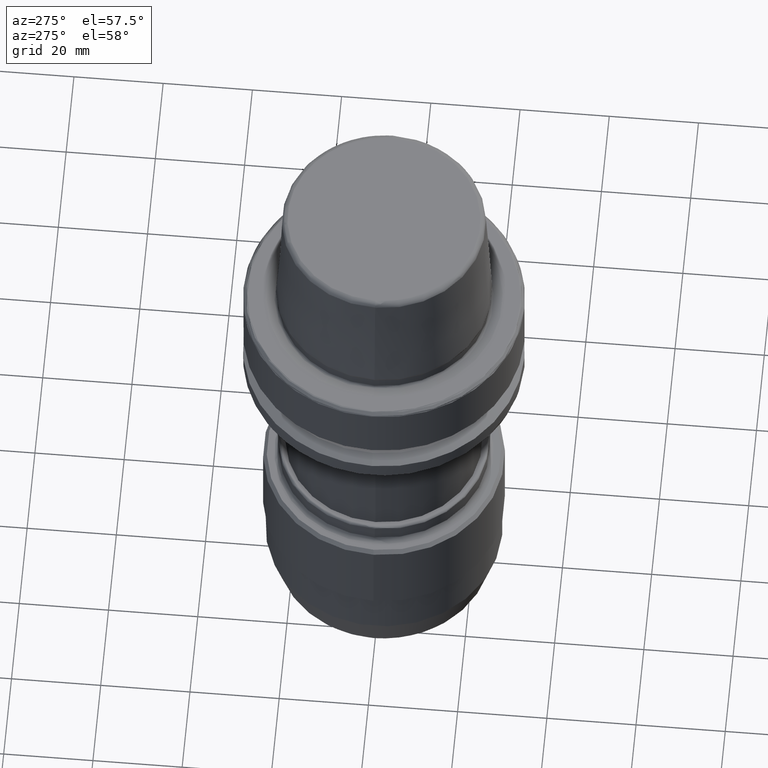
[diagram: clean part render]
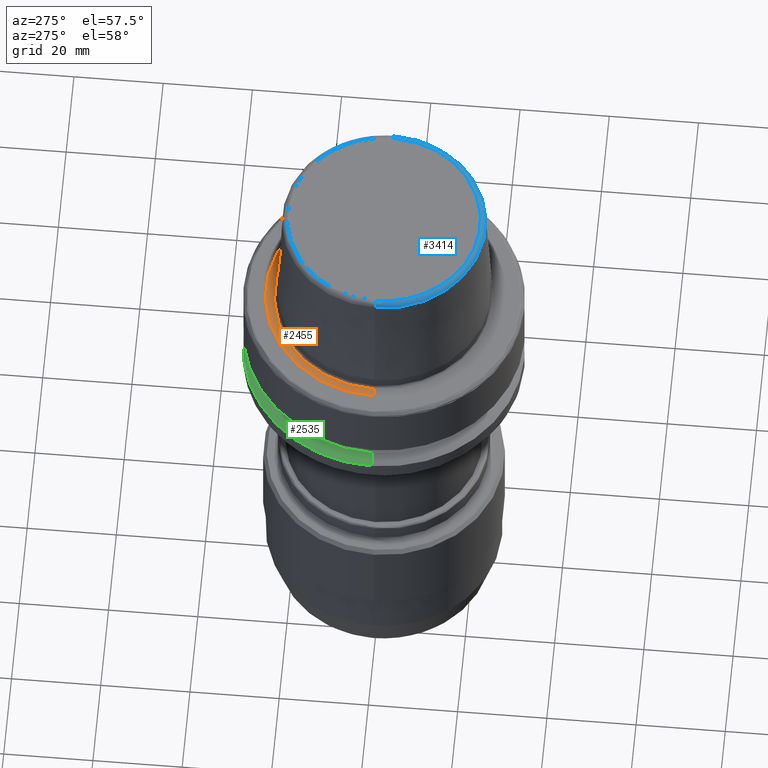
[diagram: same view with three faces highlighted in distinct colors, each labeled with its STEP entity id]
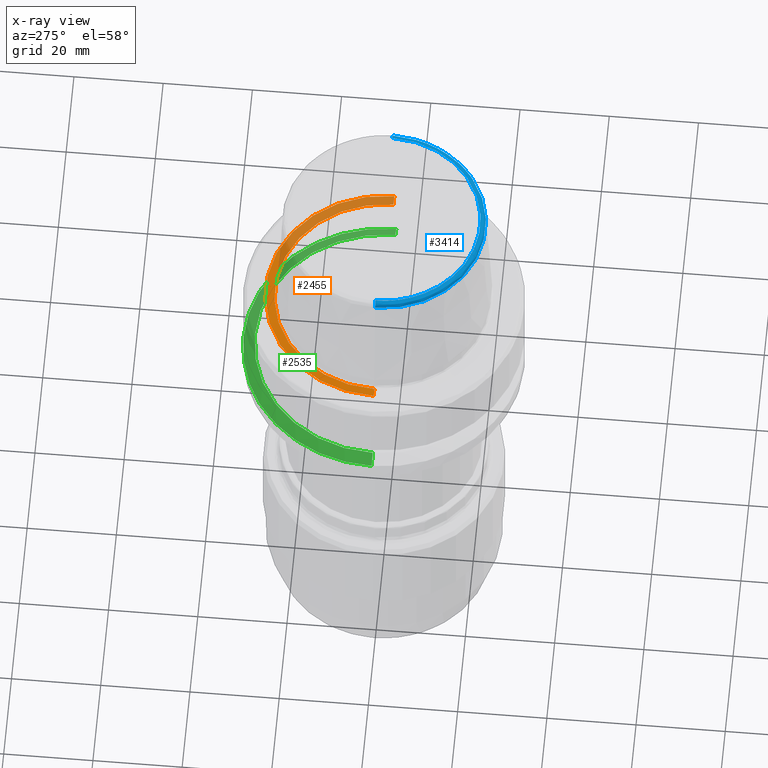
[diagram: x-ray of the same camera — body ghosted, the three highlighted faces saturated]
A machine part, auxiliary view with three faces highlighted in distinct colors.
The next image is the same camera in x-ray (body ghosted, the three faces saturated) — at least one of them is partly hidden behind the body in this view.
Their STEP definitions:

[orange] entity #2455 — the highlighted conical surface has half-angle 80 deg.
#88 = DIRECTION ( 'NONE',  ( 1.000000000000000000, 0.0000000000000000000, 0.0000000000000000000 ) ) ;
#109 = VECTOR ( 'NONE', #910, 1000.000000000000200 ) ;
#584 = DIRECTION ( 'NONE',  ( -0.0000000000000000000, -0.0000000000000000000, -1.000000000000000000 ) ) ;
#585 = CARTESIAN_POINT ( 'NONE',  ( 0.0000000000000000000, 0.0000000000000000000, -0.3611486740000000600 ) ) ;
#610 = EDGE_CURVE ( 'NONE', #2895, #1164, #1522, .T. ) ;
#611 = ORIENTED_EDGE ( 'NONE', *, *, #1173, .T. ) ;
#622 = CARTESIAN_POINT ( 'NONE',  ( -26.52499999999999900, 3.248375634738354300E-015, -2.168404344971008900E-016 ) ) ;
#648 = VERTEX_POINT ( 'NONE', #622 ) ;
#704 = CARTESIAN_POINT ( 'NONE',  ( -24.47682408902667500, -7.530420809730855500E-009, -0.3611486741505421900 ) ) ;
#723 = CIRCLE ( 'NONE', #2200, 24.47682408900000100 ) ;
#855 = FACE_OUTER_BOUND ( 'NONE', #2799, .T. ) ;
#868 = DIRECTION ( 'NONE',  ( 1.000000000000000000, 0.0000000000000000000, 0.0000000000000000000 ) ) ;
#910 = DIRECTION ( 'NONE',  ( 0.9848077530406941200, 0.0000000000000000000, 0.1736481775053776400 ) ) ;
#1164 = VERTEX_POINT ( 'NONE', #3451 ) ;
#1169 = VECTOR ( 'NONE', #2780, 1000.000000000000200 ) ;
#1173 = EDGE_CURVE ( 'NONE', #1624, #2895, #723, .T. ) ;
#1522 = LINE ( 'NONE', #3568, #109 ) ;
#1553 = ORIENTED_EDGE ( 'NONE', *, *, #3344, .F. ) ;
#1624 = VERTEX_POINT ( 'NONE', #704 ) ;
#1626 = CARTESIAN_POINT ( 'NONE',  ( -24.47682408900000400, 2.997546427388668300E-015, -0.3611486740000000600 ) ) ;
#1781 = DIRECTION ( 'NONE',  ( 0.0000000000000000000, -0.0000000000000000000, 1.000000000000000000 ) ) ;
#1893 = CARTESIAN_POINT ( 'NONE',  ( 24.47682408877312100, 0.0000000000000000000, -0.3611486741952509800 ) ) ;
#1894 = AXIS2_PLACEMENT_3D ( 'NONE', #3524, #1781, #88 ) ;
#1916 = LINE ( 'NONE', #1626, #1169 ) ;
#2200 = AXIS2_PLACEMENT_3D ( 'NONE', #2282, #584, #2562 ) ;
#2282 = CARTESIAN_POINT ( 'NONE',  ( 0.0000000000000000000, 0.0000000000000000000, -0.3611486739999447700 ) ) ;
#2294 = AXIS2_PLACEMENT_3D ( 'NONE', #585, #2863, #868 ) ;
#2353 = CIRCLE ( 'NONE', #1894, 26.52499999999999900 ) ;
#2455 = ADVANCED_FACE ( 'NONE', ( #855 ), #3555, .F. ) ;
#2562 = DIRECTION ( 'NONE',  ( 1.000000000000000000, 8.881784197001252300E-016, -2.259047603386186600E-015 ) ) ;
#2780 = DIRECTION ( 'NONE',  ( -0.9848077530406941200, 1.206041662536783300E-016, 0.1736481775053776400 ) ) ;
#2799 = EDGE_LOOP ( 'NONE', ( #1553, #611, #3702, #3083 ) ) ;
#2863 = DIRECTION ( 'NONE',  ( 0.0000000000000000000, -0.0000000000000000000, 1.000000000000000000 ) ) ;
#2895 = VERTEX_POINT ( 'NONE', #1893 ) ;
#3083 = ORIENTED_EDGE ( 'NONE', *, *, #3117, .T. ) ;
#3117 = EDGE_CURVE ( 'NONE', #1164, #648, #2353, .T. ) ;
#3344 = EDGE_CURVE ( 'NONE', #1624, #648, #1916, .T. ) ;
#3451 = CARTESIAN_POINT ( 'NONE',  ( 26.52499999999999900, 0.0000000000000000000, -2.168404344971008900E-016 ) ) ;
#3524 = CARTESIAN_POINT ( 'NONE',  ( 0.0000000000000000000, 0.0000000000000000000, -2.168404344971008900E-016 ) ) ;
#3555 = CONICAL_SURFACE ( 'NONE', #2294, 24.47682408900000400, 1.396263401759508600 ) ;
#3568 = CARTESIAN_POINT ( 'NONE',  ( 24.47682408900000400, 0.0000000000000000000, -0.3611486740000000600 ) ) ;
#3702 = ORIENTED_EDGE ( 'NONE', *, *, #610, .T. ) ;

[blue] entity #3414 — the highlighted face is a freeform B-spline surface patch.
#14 = CARTESIAN_POINT ( 'NONE',  ( 21.46128262699999900, 0.0000000000000000000, 31.89400499800000700 ) ) ;
#17 = CARTESIAN_POINT ( 'NONE',  ( 22.77957961885135400, -7.008254819992292000E-009, 30.76004333299252700 ) ) ;
#143 = FACE_OUTER_BOUND ( 'NONE', #3543, .T. ) ;
#178 = VERTEX_POINT ( 'NONE', #613 ) ;
#254 =( BOUNDED_SURFACE ( )  B_SPLINE_SURFACE ( 3, 3, ( 
 ( #2836, #851, #1702, #14 ),
 ( #1983, #295, #2273, #575 ),
 ( #2554, #863, #2852, #1156 ),
 ( #3150, #1432, #3458, #1713 ) ),
 .UNSPECIFIED., .F., .F., .F. ) 
 B_SPLINE_SURFACE_WITH_KNOTS ( ( 4, 4 ),
 ( 4, 4 ),
 ( 0.0000000000000000000, 1.000000000000000000 ),
 ( 0.0000000000000000000, 1.000000000000000000 ),
 .UNSPECIFIED. ) 
 GEOMETRIC_REPRESENTATION_ITEM ( )  RATIONAL_B_SPLINE_SURFACE ( (
 ( 1.000000000000000000, 0.3333333333333330400, 0.3333333333333330400, 1.000000000000000000),
 ( 0.7681048544680412200, 0.2560349514893470200, 0.2560349514893470200, 0.7681048544680412200),
 ( 0.7681048544680412200, 0.2560349514893470200, 0.2560349514893470200, 0.7681048544680412200),
 ( 1.000000000000000000, 0.3333333333333330400, 0.3333333333333330400, 1.000000000000000000) ) ) 
 REPRESENTATION_ITEM ( '' )  SURFACE ( )  );
#295 = CARTESIAN_POINT ( 'NONE',  ( -22.24690081400000000, -44.49380162800000000, 31.97282974100000500 ) ) ;
#509 = EDGE_CURVE ( 'NONE', #1375, #706, #3439, .T. ) ;
#575 = CARTESIAN_POINT ( 'NONE',  ( 22.24690081399999600, 0.0000000000000000000, 31.97282974099999800 ) ) ;
#613 = CARTESIAN_POINT ( 'NONE',  ( -21.58108272221028700, 0.0000000000000000000, 31.89999999979466200 ) ) ;
#641 = CARTESIAN_POINT ( 'NONE',  ( -22.77957961885135400, -1.022730554035613000E-009, 30.76004333299252700 ) ) ;
#643 = CARTESIAN_POINT ( 'NONE',  ( -21.58108272221028700, 0.0000000000000000000, 31.89999999979466200 ) ) ;
#686 = EDGE_CURVE ( 'NONE', #752, #706, #860, .T. ) ;
#706 = VERTEX_POINT ( 'NONE', #3203 ) ;
#752 = VERTEX_POINT ( 'NONE', #641 ) ;
#851 = CARTESIAN_POINT ( 'NONE',  ( -21.46128262699999900, -42.92256525500000200, 31.89400499800000700 ) ) ;
#860 = CIRCLE ( 'NONE', #2347, 22.77957961900000300 ) ;
#863 = CARTESIAN_POINT ( 'NONE',  ( -22.81900318700000300, -45.63800637400000700, 31.42867153899998900 ) ) ;
#1137 = CARTESIAN_POINT ( 'NONE',  ( -21.58108272221028700, 0.0000000000000000000, 31.89999999979466200 ) ) ;
#1142 =( BOUNDED_CURVE ( )  B_SPLINE_CURVE ( 3, ( #2541, #1967, #2826, #1137 ),
 .UNSPECIFIED., .F., .F. ) 
 B_SPLINE_CURVE_WITH_KNOTS ( ( 4, 4 ),
 ( 0.06452911945562626900, 0.9354708810000044200 ),
 .UNSPECIFIED. ) 
 CURVE ( )  GEOMETRIC_REPRESENTATION_ITEM ( )  RATIONAL_B_SPLINE_CURVE ( ( 0.9580048705654395900, 0.7821032308542056300, 0.7821032309462280200, 0.9580048708415067600 ) ) 
 REPRESENTATION_ITEM ( '' )  );
#1156 = CARTESIAN_POINT ( 'NONE',  ( 22.81900318700000300, 0.0000000000000000000, 31.42867153900000000 ) ) ;
#1218 = CARTESIAN_POINT ( 'NONE',  ( 0.0000000000000000000, 0.0000000000000000000, 30.76004333299997700 ) ) ;
#1375 = VERTEX_POINT ( 'NONE', #1766 ) ;
#1432 = CARTESIAN_POINT ( 'NONE',  ( -22.77958645700000100, -45.55917291400001500, 30.64009332700000600 ) ) ;
#1484 = DIRECTION ( 'NONE',  ( -1.000000000000000000, 0.0000000000000000000, 9.138308107476618100E-016 ) ) ;
#1702 = CARTESIAN_POINT ( 'NONE',  ( 21.46128262699999900, -42.92256525500000200, 31.89400499800000700 ) ) ;
#1713 = CARTESIAN_POINT ( 'NONE',  ( 22.77958645700000100, 0.0000000000000000000, 30.64009332700000200 ) ) ;
#1766 = CARTESIAN_POINT ( 'NONE',  ( 21.58108272221028700, 0.0000000000000000000, 31.89999999979466200 ) ) ;
#1967 = CARTESIAN_POINT ( 'NONE',  ( -22.74578747703638700, 0.0000000000000000000, 31.43455247572518700 ) ) ;
#1983 = CARTESIAN_POINT ( 'NONE',  ( -22.24690081399999600, 0.0000000000000000000, 31.97282974099999800 ) ) ;
#1984 = CARTESIAN_POINT ( 'NONE',  ( 22.74578747703637300, 0.0000000000000000000, 31.43455247572518000 ) ) ;
#2072 = ORIENTED_EDGE ( 'NONE', *, *, #509, .F. ) ;
#2273 = CARTESIAN_POINT ( 'NONE',  ( 22.24690081400000000, -44.49380162800000000, 31.97282974100000500 ) ) ;
#2297 = ORIENTED_EDGE ( 'NONE', *, *, #3572, .T. ) ;
#2341 = CARTESIAN_POINT ( 'NONE',  ( -21.58108272589980100, -43.16216545265412200, 31.89999999965778300 ) ) ;
#2347 = AXIS2_PLACEMENT_3D ( 'NONE', #1218, #3215, #1484 ) ;
#2536 = CARTESIAN_POINT ( 'NONE',  ( 22.25643781279270100, 0.0000000000000000000, 31.90000000019290700 ) ) ;
#2541 = CARTESIAN_POINT ( 'NONE',  ( -22.77957961885135400, -1.022730554035613000E-009, 30.76004333299252700 ) ) ;
#2554 = CARTESIAN_POINT ( 'NONE',  ( -22.81900318700000300, 0.0000000000000000000, 31.42867153900000000 ) ) ;
#2558 = ORIENTED_EDGE ( 'NONE', *, *, #686, .T. ) ;
#2609 = ORIENTED_EDGE ( 'NONE', *, *, #3019, .F. ) ;
#2826 = CARTESIAN_POINT ( 'NONE',  ( -22.25643781279269700, 0.0000000000000000000, 31.90000000019291400 ) ) ;
#2836 = CARTESIAN_POINT ( 'NONE',  ( -21.46128262699999900, 0.0000000000000000000, 31.89400499800000700 ) ) ;
#2838 = CARTESIAN_POINT ( 'NONE',  ( 21.58108272221028700, 0.0000000000000000000, 31.89999999979466200 ) ) ;
#2852 = CARTESIAN_POINT ( 'NONE',  ( 22.81900318700000300, -45.63800637400000700, 31.42867153899998900 ) ) ;
#3019 = EDGE_CURVE ( 'NONE', #752, #178, #1142, .T. ) ;
#3150 = CARTESIAN_POINT ( 'NONE',  ( -22.77958645700000100, 0.0000000000000000000, 30.64009332700000200 ) ) ;
#3203 = CARTESIAN_POINT ( 'NONE',  ( 22.77957961885135400, -7.008254819992292000E-009, 30.76004333299252700 ) ) ;
#3215 = DIRECTION ( 'NONE',  ( -0.0000000000000000000, -0.0000000000000000000, 1.000000000000000000 ) ) ;
#3217 = CARTESIAN_POINT ( 'NONE',  ( 21.58108272589980100, -43.16216545265412200, 31.89999999965778300 ) ) ;
#3414 = ADVANCED_FACE ( 'NONE', ( #143 ), #254, .T. ) ;
#3425 =( BOUNDED_CURVE ( )  B_SPLINE_CURVE ( 3, ( #3513, #3217, #2341, #643 ),
 .UNSPECIFIED., .F., .F. ) 
 B_SPLINE_CURVE_WITH_KNOTS ( ( 4, 4 ),
 ( 0.0000000000000000000, 1.000000000000000000 ),
 .UNSPECIFIED. ) 
 CURVE ( )  GEOMETRIC_REPRESENTATION_ITEM ( )  RATIONAL_B_SPLINE_CURVE ( ( 0.9580048709100960100, 0.3193349569700317800, 0.3193349569700317800, 0.9580048709100960100 ) ) 
 REPRESENTATION_ITEM ( '' )  );
#3439 =( BOUNDED_CURVE ( )  B_SPLINE_CURVE ( 3, ( #2838, #2536, #1984, #17 ),
 .UNSPECIFIED., .F., .F. ) 
 B_SPLINE_CURVE_WITH_KNOTS ( ( 4, 4 ),
 ( 0.06452911899999730400, 0.9354708805443712200 ),
 .UNSPECIFIED. ) 
 CURVE ( )  GEOMETRIC_REPRESENTATION_ITEM ( )  RATIONAL_B_SPLINE_CURVE ( ( 0.9580048708415057600, 0.7821032309462285800, 0.7821032308542060800, 0.9580048705654378200 ) ) 
 REPRESENTATION_ITEM ( '' )  );
#3458 = CARTESIAN_POINT ( 'NONE',  ( 22.77958645700000100, -45.55917291400001500, 30.64009332700000600 ) ) ;
#3513 = CARTESIAN_POINT ( 'NONE',  ( 21.58108272221028700, 0.0000000000000000000, 31.89999999979466200 ) ) ;
#3543 = EDGE_LOOP ( 'NONE', ( #2072, #2297, #2609, #2558 ) ) ;
#3572 = EDGE_CURVE ( 'NONE', #1375, #178, #3425, .T. ) ;

[green] entity #2535 — the highlighted conical surface has half-angle 60 deg.
#10 = VERTEX_POINT ( 'NONE', #2170 ) ;
#12 = CARTESIAN_POINT ( 'NONE',  ( 28.94089653400000000, 3.700937523897971800E-015, -19.90000000000000200 ) ) ;
#100 = EDGE_CURVE ( 'NONE', #10, #1489, #2653, .T. ) ;
#114 = CARTESIAN_POINT ( 'NONE',  ( 3.857637417314162700E-015, 31.50000000000000000, -21.37749907499999900 ) ) ;
#141 = AXIS2_PLACEMENT_3D ( 'NONE', #3509, #1205, #1475 ) ;
#153 = DIRECTION ( 'NONE',  ( 0.8660254037813912600, 1.060575238721174900E-016, -0.5000000000052784400 ) ) ;
#201 = EDGE_CURVE ( 'NONE', #1489, #3268, #3358, .T. ) ;
#312 = CARTESIAN_POINT ( 'NONE',  ( -28.94089653399999700, 0.0000000000000000000, -19.89999999999999900 ) ) ;
#341 = AXIS2_PLACEMENT_3D ( 'NONE', #2648, #730, #2723 ) ;
#415 = VERTEX_POINT ( 'NONE', #12 ) ;
#438 = ORIENTED_EDGE ( 'NONE', *, *, #1785, .F. ) ;
#500 = FACE_OUTER_BOUND ( 'NONE', #2375, .T. ) ;
#510 = DIRECTION ( 'NONE',  ( -0.0000000000000000000, -0.0000000000000000000, 1.000000000000000000 ) ) ;
#524 = AXIS2_PLACEMENT_3D ( 'NONE', #1117, #2880, #1143 ) ;
#595 = DIRECTION ( 'NONE',  ( -0.8660254037813912600, 0.0000000000000000000, -0.5000000000052784400 ) ) ;
#670 = VECTOR ( 'NONE', #153, 999.9999999999998900 ) ;
#730 = DIRECTION ( 'NONE',  ( 0.0000000000000000000, 0.0000000000000000000, 1.000000000000000000 ) ) ;
#900 = CARTESIAN_POINT ( 'NONE',  ( -28.94089653400000000, 0.0000000000000000000, -19.90000000000000200 ) ) ;
#1020 = CARTESIAN_POINT ( 'NONE',  ( -31.50000000000000000, 0.0000000000000000000, -21.37749907499999900 ) ) ;
#1117 = CARTESIAN_POINT ( 'NONE',  ( 0.0000000000000000000, 0.0000000000000000000, -21.37749907499999900 ) ) ;
#1143 = DIRECTION ( 'NONE',  ( 1.000000000000000000, 0.0000000000000000000, 0.0000000000000000000 ) ) ;
#1205 = DIRECTION ( 'NONE',  ( 0.0000000000000000000, 0.0000000000000000000, -1.000000000000000000 ) ) ;
#1276 = CARTESIAN_POINT ( 'NONE',  ( 28.94089653399999700, 3.544237630481782400E-015, -19.89999999999999900 ) ) ;
#1347 = CIRCLE ( 'NONE', #2632, 28.94089653400000000 ) ;
#1427 = LINE ( 'NONE', #1276, #670 ) ;
#1475 = DIRECTION ( 'NONE',  ( -1.000000000000000000, 0.0000000000000000000, 0.0000000000000000000 ) ) ;
#1489 = VERTEX_POINT ( 'NONE', #114 ) ;
#1595 = ORIENTED_EDGE ( 'NONE', *, *, #100, .T. ) ;
#1785 = EDGE_CURVE ( 'NONE', #415, #3462, #1347, .T. ) ;
#1871 = VECTOR ( 'NONE', #595, 999.9999999999998900 ) ;
#2063 = ORIENTED_EDGE ( 'NONE', *, *, #3226, .T. ) ;
#2170 = CARTESIAN_POINT ( 'NONE',  ( 31.50000000000000000, 3.857637417314162700E-015, -21.37749907499999900 ) ) ;
#2193 = CARTESIAN_POINT ( 'NONE',  ( 0.0000000000000000000, 0.0000000000000000000, -19.90000000000000200 ) ) ;
#2375 = EDGE_LOOP ( 'NONE', ( #438, #2063, #1595, #3315, #3126 ) ) ;
#2487 = DIRECTION ( 'NONE',  ( -1.000000000000000000, 0.0000000000000000000, 0.0000000000000000000 ) ) ;
#2535 = ADVANCED_FACE ( 'NONE', ( #500 ), #2579, .T. ) ;
#2579 = CONICAL_SURFACE ( 'NONE', #141, 28.94089653399999700, 1.047197551190502700 ) ;
#2618 = LINE ( 'NONE', #312, #1871 ) ;
#2632 = AXIS2_PLACEMENT_3D ( 'NONE', #2193, #510, #2487 ) ;
#2648 = CARTESIAN_POINT ( 'NONE',  ( 0.0000000000000000000, 0.0000000000000000000, -21.37749907499999900 ) ) ;
#2653 = CIRCLE ( 'NONE', #341, 31.50000000000000000 ) ;
#2723 = DIRECTION ( 'NONE',  ( 1.000000000000000000, 0.0000000000000000000, 0.0000000000000000000 ) ) ;
#2880 = DIRECTION ( 'NONE',  ( 0.0000000000000000000, 0.0000000000000000000, 1.000000000000000000 ) ) ;
#3068 = EDGE_CURVE ( 'NONE', #3462, #3268, #2618, .T. ) ;
#3126 = ORIENTED_EDGE ( 'NONE', *, *, #3068, .F. ) ;
#3226 = EDGE_CURVE ( 'NONE', #415, #10, #1427, .T. ) ;
#3268 = VERTEX_POINT ( 'NONE', #1020 ) ;
#3315 = ORIENTED_EDGE ( 'NONE', *, *, #201, .T. ) ;
#3358 = CIRCLE ( 'NONE', #524, 31.50000000000000000 ) ;
#3462 = VERTEX_POINT ( 'NONE', #900 ) ;
#3509 = CARTESIAN_POINT ( 'NONE',  ( 0.0000000000000000000, 0.0000000000000000000, -19.89999999999999900 ) ) ;